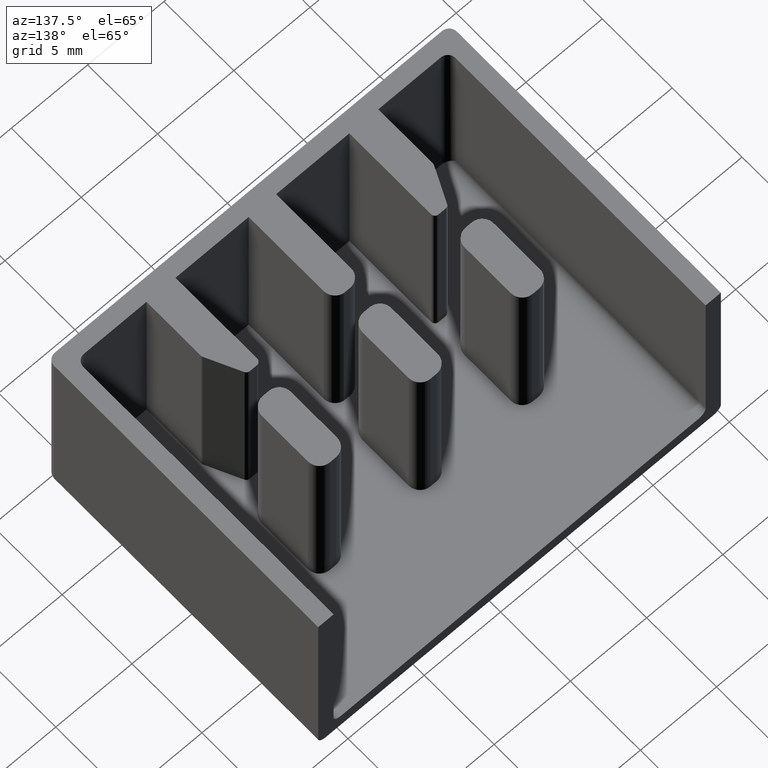
[diagram: clean part render]
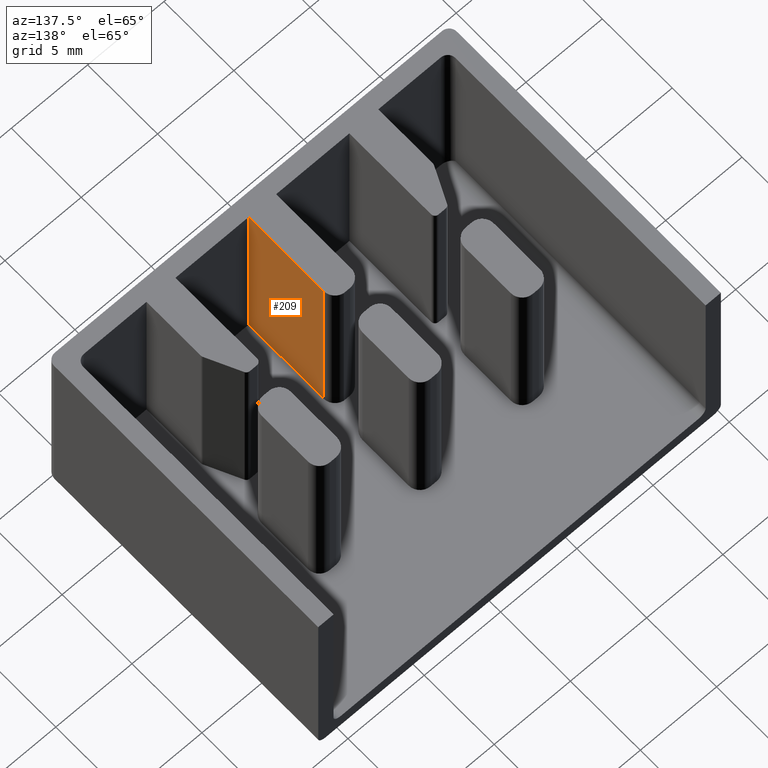
[diagram: same view with one face highlighted and labeled with its STEP entity id]
A machine part, auxiliary view. The second image highlights one B-rep face of the part: STEP entity #209.
In plain terms, the highlighted planar face has unit normal (-1, 0, 0).
Its self-contained STEP definition (entity closure, byte-faithful):
#7 = EDGE_CURVE ( 'NONE', #903, #740, #1319, .T. ) ;
#46 = EDGE_CURVE ( 'NONE', #740, #799, #1464, .T. ) ;
#111 = EDGE_CURVE ( 'NONE', #812, #903, #1605, .T. ) ;
#164 = EDGE_CURVE ( 'NONE', #812, #799, #2135, .T. ) ;
#209 = ADVANCED_FACE ( 'NONE', ( #1717 ), #1745, .F. ) ;
#272 = VECTOR ( 'NONE', #1284, 1000.000000000000000 ) ;
#304 = VECTOR ( 'NONE', #1435, 1000.000000000000000 ) ;
#372 = VECTOR ( 'NONE', #615, 1000.000000000000000 ) ;
#484 = AXIS2_PLACEMENT_3D ( 'NONE', #1704, #1753, #1731 ) ;
#488 = VECTOR ( 'NONE', #2170, 1000.000000000000000 ) ;
#612 = CARTESIAN_POINT ( 'NONE',  ( 14.10000000000007800, 1.000000000000000900, 13.30000000000000100 ) ) ;
#615 = DIRECTION ( 'NONE',  ( 0.0000000000000000000, -1.000000000000000000, 0.0000000000000000000 ) ) ;
#740 = VERTEX_POINT ( 'NONE', #1929 ) ;
#799 = VERTEX_POINT ( 'NONE', #1984 ) ;
#812 = VERTEX_POINT ( 'NONE', #2038 ) ;
#903 = VERTEX_POINT ( 'NONE', #2066 ) ;
#1104 = ORIENTED_EDGE ( 'NONE', *, *, #7, .T. ) ;
#1175 = ORIENTED_EDGE ( 'NONE', *, *, #111, .T. ) ;
#1183 = ORIENTED_EDGE ( 'NONE', *, *, #164, .F. ) ;
#1196 = ORIENTED_EDGE ( 'NONE', *, *, #46, .T. ) ;
#1246 = EDGE_LOOP ( 'NONE', ( #1183, #1175, #1104, #1196 ) ) ;
#1281 = CARTESIAN_POINT ( 'NONE',  ( 14.10000000000007800, 1.000000000000000900, 19.68905313798537200 ) ) ;
#1284 = DIRECTION ( 'NONE',  ( -0.0000000000000000000, -0.0000000000000000000, -1.000000000000000000 ) ) ;
#1319 = LINE ( 'NONE', #1281, #272 ) ;
#1435 = DIRECTION ( 'NONE',  ( 0.0000000000000000000, 1.000000000000000000, 0.0000000000000000000 ) ) ;
#1436 = CARTESIAN_POINT ( 'NONE',  ( 14.10000000000007800, 1.000000000000000900, 1.000000000000000000 ) ) ;
#1464 = LINE ( 'NONE', #1436, #304 ) ;
#1605 = LINE ( 'NONE', #612, #372 ) ;
#1704 = CARTESIAN_POINT ( 'NONE',  ( 14.10000000000007800, 1.000000000000000900, 19.68905313798537200 ) ) ;
#1717 = FACE_OUTER_BOUND ( 'NONE', #1246, .T. ) ;
#1731 = DIRECTION ( 'NONE',  ( 0.0000000000000000000, 0.0000000000000000000, 1.000000000000000000 ) ) ;
#1745 = PLANE ( 'NONE',  #484 ) ;
#1753 = DIRECTION ( 'NONE',  ( -1.000000000000000000, 0.0000000000000000000, 0.0000000000000000000 ) ) ;
#1929 = CARTESIAN_POINT ( 'NONE',  ( 14.10000000000007800, 1.000000000000000900, 1.000000000000000000 ) ) ;
#1984 = CARTESIAN_POINT ( 'NONE',  ( 14.10000000000006000, 6.349999999999885100, 1.000000000000000900 ) ) ;
#2038 = CARTESIAN_POINT ( 'NONE',  ( 14.10000000000006000, 6.349999999999885100, 13.30000000000000100 ) ) ;
#2066 = CARTESIAN_POINT ( 'NONE',  ( 14.10000000000007800, 1.000000000000000900, 13.30000000000000100 ) ) ;
#2135 = LINE ( 'NONE', #2158, #488 ) ;
#2158 = CARTESIAN_POINT ( 'NONE',  ( 14.10000000000006000, 6.349999999999885100, 19.68905313798537200 ) ) ;
#2170 = DIRECTION ( 'NONE',  ( -0.0000000000000000000, -0.0000000000000000000, -1.000000000000000000 ) ) ;